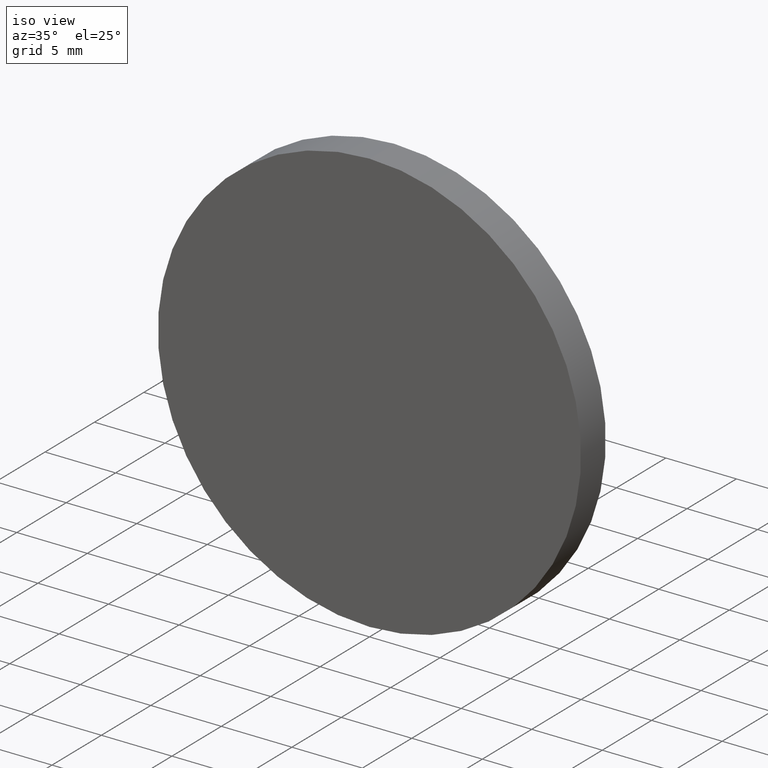
[diagram: clean part render]
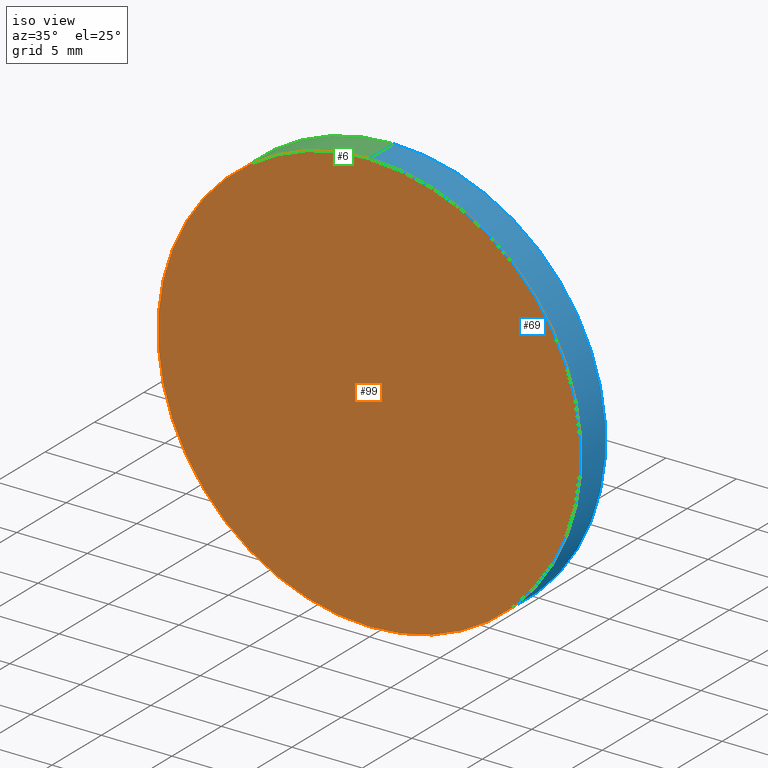
[diagram: same view with three faces highlighted in distinct colors, each labeled with its STEP entity id]
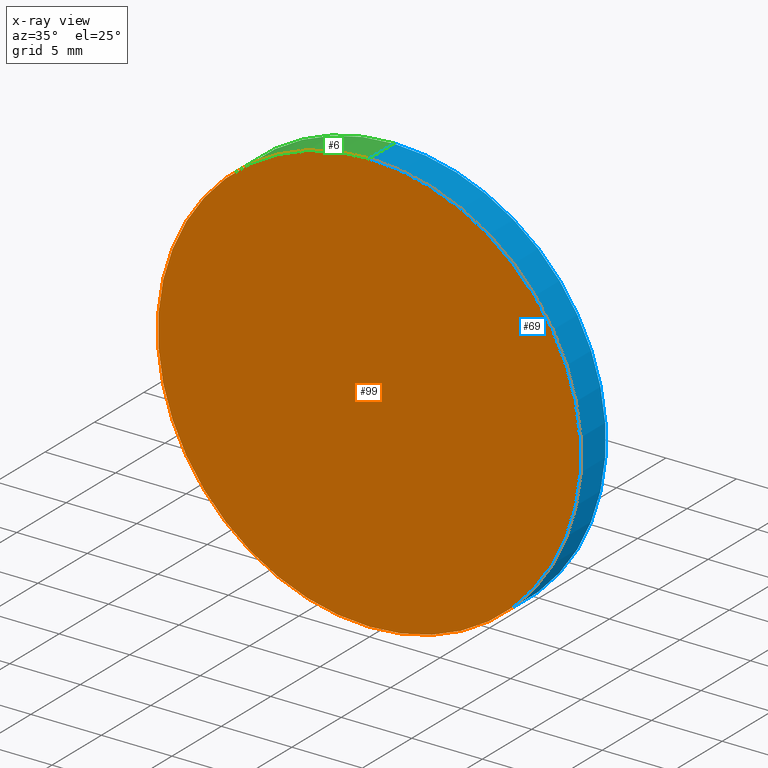
[diagram: x-ray of the same camera — body ghosted, the three highlighted faces saturated]
A machine part, iso view with three faces highlighted in distinct colors.
The next image is the same camera in x-ray (body ghosted, the three faces saturated) — at least one of them is partly hidden behind the body in this view.
Their STEP definitions:

[orange] entity #99 — the highlighted planar face has unit normal (0, -1, 0).
#18 = EDGE_CURVE ( 'NONE', #197, #40, #129, .T. ) ;
#25 = PLANE ( 'NONE',  #151 ) ;
#34 = CIRCLE ( 'NONE', #77, 15.00000000000000000 ) ;
#36 = CARTESIAN_POINT ( 'NONE',  ( 0.000000000000000000, -9.184850993605147944E-16, 0.000000000000000000 ) ) ;
#40 = VERTEX_POINT ( 'NONE', #65 ) ;
#52 = DIRECTION ( 'NONE',  ( 0.000000000000000000, 0.000000000000000000, 1.000000000000000000 ) ) ;
#65 = CARTESIAN_POINT ( 'NONE',  ( 0.000000000000000000, -1.734723475976807094E-15, 15.00000000000000000 ) ) ;
#68 = EDGE_LOOP ( 'NONE', ( #123, #90 ) ) ;
#75 = EDGE_CURVE ( 'NONE', #40, #197, #34, .T. ) ;
#77 = AXIS2_PLACEMENT_3D ( 'NONE', #102, #92, #52 ) ;
#89 = DIRECTION ( 'NONE',  ( 0.000000000000000000, -1.000000000000000000, 0.000000000000000000 ) ) ;
#90 = ORIENTED_EDGE ( 'NONE', *, *, #18, .F. ) ;
#92 = DIRECTION ( 'NONE',  ( -0.000000000000000000, 1.000000000000000000, -0.000000000000000000 ) ) ;
#99 = ADVANCED_FACE ( 'NONE', ( #175 ), #25, .T. ) ;
#100 = AXIS2_PLACEMENT_3D ( 'NONE', #147, #109, #126 ) ;
#102 = CARTESIAN_POINT ( 'NONE',  ( 0.000000000000000000, -1.734723475976807094E-15, 0.000000000000000000 ) ) ;
#109 = DIRECTION ( 'NONE',  ( -0.000000000000000000, 1.000000000000000000, -0.000000000000000000 ) ) ;
#122 = CARTESIAN_POINT ( 'NONE',  ( 1.836970198721029589E-15, -1.734723475976807094E-15, -15.00000000000000000 ) ) ;
#123 = ORIENTED_EDGE ( 'NONE', *, *, #75, .F. ) ;
#126 = DIRECTION ( 'NONE',  ( 0.000000000000000000, 0.000000000000000000, 1.000000000000000000 ) ) ;
#129 = CIRCLE ( 'NONE', #100, 15.00000000000000000 ) ;
#147 = CARTESIAN_POINT ( 'NONE',  ( 0.000000000000000000, -1.734723475976807094E-15, 0.000000000000000000 ) ) ;
#151 = AXIS2_PLACEMENT_3D ( 'NONE', #36, #89, #162 ) ;
#162 = DIRECTION ( 'NONE',  ( 0.000000000000000000, -0.000000000000000000, -1.000000000000000000 ) ) ;
#175 = FACE_OUTER_BOUND ( 'NONE', #68, .T. ) ;
#197 = VERTEX_POINT ( 'NONE', #122 ) ;

[blue] entity #69 — the highlighted cylindrical surface (partial cylindrical patch) has radius 15 mm, axis along (-0, 1, -0).
#10 = DIRECTION ( 'NONE',  ( -0.000000000000000000, 1.000000000000000000, -0.000000000000000000 ) ) ;
#11 = ORIENTED_EDGE ( 'NONE', *, *, #145, .T. ) ;
#12 = AXIS2_PLACEMENT_3D ( 'NONE', #119, #14, #164 ) ;
#13 = ORIENTED_EDGE ( 'NONE', *, *, #75, .T. ) ;
#14 = DIRECTION ( 'NONE',  ( -0.000000000000000000, 1.000000000000000000, -0.000000000000000000 ) ) ;
#15 = LINE ( 'NONE', #26, #63 ) ;
#24 = CIRCLE ( 'NONE', #12, 15.00000000000000000 ) ;
#26 = CARTESIAN_POINT ( 'NONE',  ( 1.836970198721029589E-15, 2.939999999999999947, -15.00000000000000000 ) ) ;
#34 = CIRCLE ( 'NONE', #77, 15.00000000000000000 ) ;
#38 = CARTESIAN_POINT ( 'NONE',  ( 1.836970198721009473E-15, 2.500000000000028422, -14.99999999999983302 ) ) ;
#40 = VERTEX_POINT ( 'NONE', #65 ) ;
#42 = LINE ( 'NONE', #66, #170 ) ;
#46 = EDGE_CURVE ( 'NONE', #67, #180, #24, .T. ) ;
#52 = DIRECTION ( 'NONE',  ( 0.000000000000000000, 0.000000000000000000, 1.000000000000000000 ) ) ;
#53 = DIRECTION ( 'NONE',  ( -0.000000000000000000, 1.000000000000000000, -0.000000000000000000 ) ) ;
#63 = VECTOR ( 'NONE', #136, 1000.000000000000000 ) ;
#65 = CARTESIAN_POINT ( 'NONE',  ( 0.000000000000000000, -1.734723475976807094E-15, 15.00000000000000000 ) ) ;
#66 = CARTESIAN_POINT ( 'NONE',  ( 0.000000000000000000, 2.939999999999999947, 15.00000000000000000 ) ) ;
#67 = VERTEX_POINT ( 'NONE', #191 ) ;
#69 = ADVANCED_FACE ( 'NONE', ( #155 ), #184, .T. ) ;
#72 = AXIS2_PLACEMENT_3D ( 'NONE', #74, #53, #135 ) ;
#74 = CARTESIAN_POINT ( 'NONE',  ( 0.000000000000000000, 2.939999999999999947, 0.000000000000000000 ) ) ;
#75 = EDGE_CURVE ( 'NONE', #40, #197, #34, .T. ) ;
#77 = AXIS2_PLACEMENT_3D ( 'NONE', #102, #92, #52 ) ;
#87 = EDGE_LOOP ( 'NONE', ( #13, #11, #166, #125 ) ) ;
#88 = EDGE_CURVE ( 'NONE', #40, #67, #42, .T. ) ;
#92 = DIRECTION ( 'NONE',  ( -0.000000000000000000, 1.000000000000000000, -0.000000000000000000 ) ) ;
#102 = CARTESIAN_POINT ( 'NONE',  ( 0.000000000000000000, -1.734723475976807094E-15, 0.000000000000000000 ) ) ;
#119 = CARTESIAN_POINT ( 'NONE',  ( 0.000000000000000000, 2.499999999999998224, 0.000000000000000000 ) ) ;
#122 = CARTESIAN_POINT ( 'NONE',  ( 1.836970198721029589E-15, -1.734723475976807094E-15, -15.00000000000000000 ) ) ;
#125 = ORIENTED_EDGE ( 'NONE', *, *, #88, .F. ) ;
#135 = DIRECTION ( 'NONE',  ( 0.000000000000000000, 0.000000000000000000, 1.000000000000000000 ) ) ;
#136 = DIRECTION ( 'NONE',  ( -0.000000000000000000, 1.000000000000000000, -0.000000000000000000 ) ) ;
#145 = EDGE_CURVE ( 'NONE', #197, #180, #15, .T. ) ;
#155 = FACE_OUTER_BOUND ( 'NONE', #87, .T. ) ;
#164 = DIRECTION ( 'NONE',  ( 0.000000000000000000, 0.000000000000000000, 1.000000000000000000 ) ) ;
#166 = ORIENTED_EDGE ( 'NONE', *, *, #46, .F. ) ;
#170 = VECTOR ( 'NONE', #10, 1000.000000000000000 ) ;
#180 = VERTEX_POINT ( 'NONE', #38 ) ;
#184 = CYLINDRICAL_SURFACE ( 'NONE', #72, 15.00000000000000000 ) ;
#191 = CARTESIAN_POINT ( 'NONE',  ( 0.000000000000000000, 2.500000000000028422, 14.99999999999983302 ) ) ;
#197 = VERTEX_POINT ( 'NONE', #122 ) ;

[green] entity #6 — the highlighted cylindrical surface (partial cylindrical patch) has radius 15 mm, axis along (-0, 1, -0).
#6 = ADVANCED_FACE ( 'NONE', ( #127 ), #183, .T. ) ;
#8 = DIRECTION ( 'NONE',  ( 0.000000000000000000, 0.000000000000000000, 1.000000000000000000 ) ) ;
#10 = DIRECTION ( 'NONE',  ( -0.000000000000000000, 1.000000000000000000, -0.000000000000000000 ) ) ;
#15 = LINE ( 'NONE', #26, #63 ) ;
#18 = EDGE_CURVE ( 'NONE', #197, #40, #129, .T. ) ;
#26 = CARTESIAN_POINT ( 'NONE',  ( 1.836970198721029589E-15, 2.939999999999999947, -15.00000000000000000 ) ) ;
#38 = CARTESIAN_POINT ( 'NONE',  ( 1.836970198721009473E-15, 2.500000000000028422, -14.99999999999983302 ) ) ;
#40 = VERTEX_POINT ( 'NONE', #65 ) ;
#41 = CARTESIAN_POINT ( 'NONE',  ( 0.000000000000000000, 2.939999999999999947, 0.000000000000000000 ) ) ;
#42 = LINE ( 'NONE', #66, #170 ) ;
#56 = AXIS2_PLACEMENT_3D ( 'NONE', #71, #83, #176 ) ;
#63 = VECTOR ( 'NONE', #136, 1000.000000000000000 ) ;
#65 = CARTESIAN_POINT ( 'NONE',  ( 0.000000000000000000, -1.734723475976807094E-15, 15.00000000000000000 ) ) ;
#66 = CARTESIAN_POINT ( 'NONE',  ( 0.000000000000000000, 2.939999999999999947, 15.00000000000000000 ) ) ;
#67 = VERTEX_POINT ( 'NONE', #191 ) ;
#71 = CARTESIAN_POINT ( 'NONE',  ( 0.000000000000000000, 2.499999999999998224, 0.000000000000000000 ) ) ;
#82 = DIRECTION ( 'NONE',  ( -0.000000000000000000, 1.000000000000000000, -0.000000000000000000 ) ) ;
#83 = DIRECTION ( 'NONE',  ( -0.000000000000000000, 1.000000000000000000, -0.000000000000000000 ) ) ;
#88 = EDGE_CURVE ( 'NONE', #40, #67, #42, .T. ) ;
#100 = AXIS2_PLACEMENT_3D ( 'NONE', #147, #109, #126 ) ;
#104 = ORIENTED_EDGE ( 'NONE', *, *, #88, .T. ) ;
#109 = DIRECTION ( 'NONE',  ( -0.000000000000000000, 1.000000000000000000, -0.000000000000000000 ) ) ;
#122 = CARTESIAN_POINT ( 'NONE',  ( 1.836970198721029589E-15, -1.734723475976807094E-15, -15.00000000000000000 ) ) ;
#124 = EDGE_CURVE ( 'NONE', #180, #67, #198, .T. ) ;
#126 = DIRECTION ( 'NONE',  ( 0.000000000000000000, 0.000000000000000000, 1.000000000000000000 ) ) ;
#127 = FACE_OUTER_BOUND ( 'NONE', #137, .T. ) ;
#129 = CIRCLE ( 'NONE', #100, 15.00000000000000000 ) ;
#136 = DIRECTION ( 'NONE',  ( -0.000000000000000000, 1.000000000000000000, -0.000000000000000000 ) ) ;
#137 = EDGE_LOOP ( 'NONE', ( #139, #138, #104, #193 ) ) ;
#138 = ORIENTED_EDGE ( 'NONE', *, *, #18, .T. ) ;
#139 = ORIENTED_EDGE ( 'NONE', *, *, #145, .F. ) ;
#145 = EDGE_CURVE ( 'NONE', #197, #180, #15, .T. ) ;
#146 = AXIS2_PLACEMENT_3D ( 'NONE', #41, #82, #8 ) ;
#147 = CARTESIAN_POINT ( 'NONE',  ( 0.000000000000000000, -1.734723475976807094E-15, 0.000000000000000000 ) ) ;
#170 = VECTOR ( 'NONE', #10, 1000.000000000000000 ) ;
#176 = DIRECTION ( 'NONE',  ( 0.000000000000000000, 0.000000000000000000, 1.000000000000000000 ) ) ;
#180 = VERTEX_POINT ( 'NONE', #38 ) ;
#183 = CYLINDRICAL_SURFACE ( 'NONE', #146, 15.00000000000000000 ) ;
#191 = CARTESIAN_POINT ( 'NONE',  ( 0.000000000000000000, 2.500000000000028422, 14.99999999999983302 ) ) ;
#193 = ORIENTED_EDGE ( 'NONE', *, *, #124, .F. ) ;
#197 = VERTEX_POINT ( 'NONE', #122 ) ;
#198 = CIRCLE ( 'NONE', #56, 15.00000000000000000 ) ;